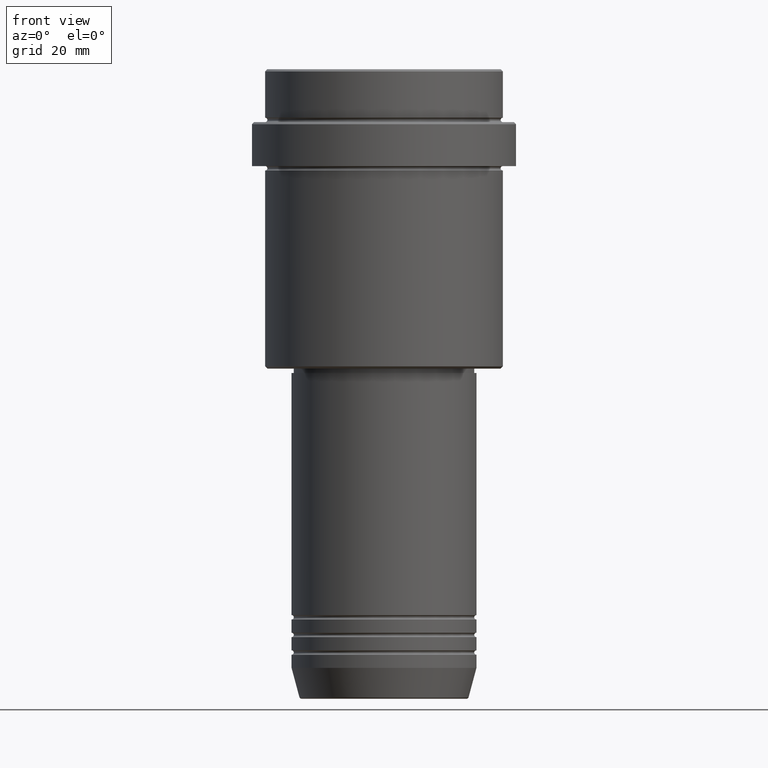
[diagram: clean part render]
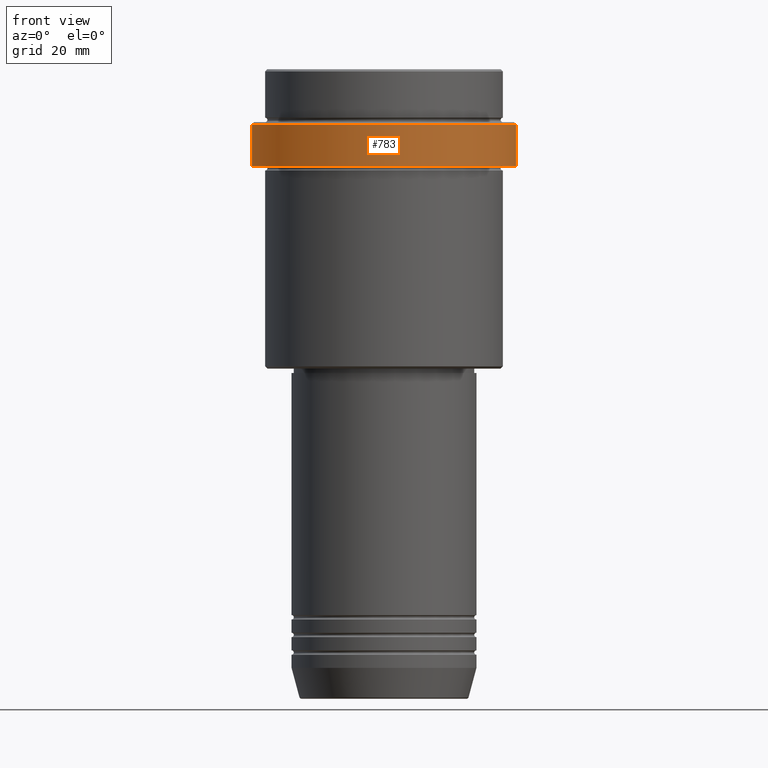
[diagram: same view with one face highlighted and labeled with its STEP entity id]
A machine part, front view. The second image highlights one B-rep face of the part: STEP entity #783.
In plain terms, the highlighted cylindrical surface (partial cylindrical patch) has radius 30 mm, axis along (-0, -0, 1).
Its self-contained STEP definition (entity closure, byte-faithful):
#2 = DIRECTION ( 'NONE',  ( -0.000000000000000000, -0.000000000000000000, 1.000000000000000000 ) ) ;
#7 = VECTOR ( 'NONE', #2, 1000.000000000000000 ) ;
#37 = EDGE_CURVE ( 'NONE', #948, #993, #129, .T. ) ;
#129 = LINE ( 'NONE', #234, #7 ) ;
#211 = VERTEX_POINT ( 'NONE', #1157 ) ;
#216 = CYLINDRICAL_SURFACE ( 'NONE', #970, 30.00000000000000000 ) ;
#225 = AXIS2_PLACEMENT_3D ( 'NONE', #500, #1067, #294 ) ;
#234 = CARTESIAN_POINT ( 'NONE',  ( 30.00000000000000000, 0.000000000000000000, 0.000000000000000000 ) ) ;
#284 = DIRECTION ( 'NONE',  ( 0.000000000000000000, 0.000000000000000000, -1.000000000000000000 ) ) ;
#294 = DIRECTION ( 'NONE',  ( 1.000000000000000000, 0.000000000000000000, 0.000000000000000000 ) ) ;
#387 = EDGE_LOOP ( 'NONE', ( #417, #945, #1079, #831 ) ) ;
#402 = DIRECTION ( 'NONE',  ( 1.000000000000000000, 0.000000000000000000, 0.000000000000000000 ) ) ;
#417 = ORIENTED_EDGE ( 'NONE', *, *, #609, .F. ) ;
#418 = CARTESIAN_POINT ( 'NONE',  ( 0.000000000000000000, 0.000000000000000000, -12.50000000000000888 ) ) ;
#437 = DIRECTION ( 'NONE',  ( -0.000000000000000000, -0.000000000000000000, 1.000000000000000000 ) ) ;
#493 = DIRECTION ( 'NONE',  ( 1.000000000000000000, 0.000000000000000000, 0.000000000000000000 ) ) ;
#500 = CARTESIAN_POINT ( 'NONE',  ( 0.000000000000000000, 0.000000000000000000, -22.00000000000000355 ) ) ;
#545 = CARTESIAN_POINT ( 'NONE',  ( 0.000000000000000000, 0.000000000000000000, 0.000000000000000000 ) ) ;
#609 = EDGE_CURVE ( 'NONE', #1199, #211, #886, .T. ) ;
#749 = VECTOR ( 'NONE', #437, 1000.000000000000000 ) ;
#783 = ADVANCED_FACE ( 'NONE', ( #787 ), #216, .T. ) ;
#787 = FACE_OUTER_BOUND ( 'NONE', #387, .T. ) ;
#806 = CARTESIAN_POINT ( 'NONE',  ( -29.99999999999999645, 3.673940397442058389E-15, -22.00000000000000355 ) ) ;
#831 = ORIENTED_EDGE ( 'NONE', *, *, #1329, .T. ) ;
#848 = CIRCLE ( 'NONE', #1144, 30.00000000000000000 ) ;
#863 = CARTESIAN_POINT ( 'NONE',  ( 29.99999999999999645, 0.000000000000000000, -22.00000000000000355 ) ) ;
#886 = LINE ( 'NONE', #1312, #749 ) ;
#902 = EDGE_CURVE ( 'NONE', #1199, #948, #1254, .T. ) ;
#945 = ORIENTED_EDGE ( 'NONE', *, *, #902, .T. ) ;
#948 = VERTEX_POINT ( 'NONE', #863 ) ;
#970 = AXIS2_PLACEMENT_3D ( 'NONE', #545, #1225, #493 ) ;
#993 = VERTEX_POINT ( 'NONE', #1205 ) ;
#1067 = DIRECTION ( 'NONE',  ( -0.000000000000000000, -0.000000000000000000, 1.000000000000000000 ) ) ;
#1079 = ORIENTED_EDGE ( 'NONE', *, *, #37, .T. ) ;
#1144 = AXIS2_PLACEMENT_3D ( 'NONE', #418, #284, #402 ) ;
#1157 = CARTESIAN_POINT ( 'NONE',  ( -30.00000000000000000, 3.673940397442059178E-15, -12.50000000000000888 ) ) ;
#1199 = VERTEX_POINT ( 'NONE', #806 ) ;
#1205 = CARTESIAN_POINT ( 'NONE',  ( 30.00000000000000000, 0.000000000000000000, -12.50000000000000888 ) ) ;
#1225 = DIRECTION ( 'NONE',  ( -0.000000000000000000, -0.000000000000000000, 1.000000000000000000 ) ) ;
#1254 = CIRCLE ( 'NONE', #225, 29.99999999999999645 ) ;
#1312 = CARTESIAN_POINT ( 'NONE',  ( -30.00000000000000000, 3.673940397442059178E-15, 0.000000000000000000 ) ) ;
#1329 = EDGE_CURVE ( 'NONE', #993, #211, #848, .T. ) ;